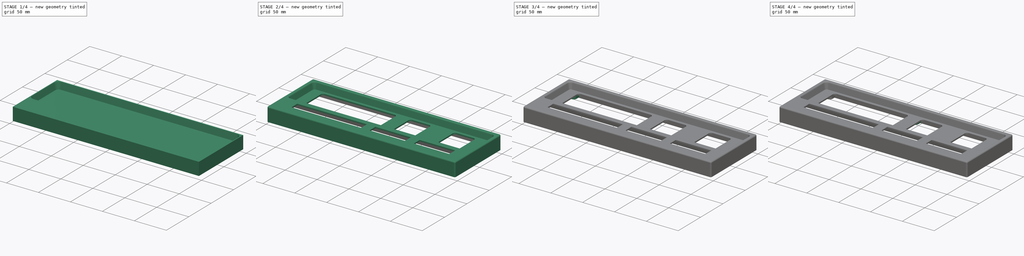
[diagram: build sequence overview — one tinted view per stage of 4, left to right]
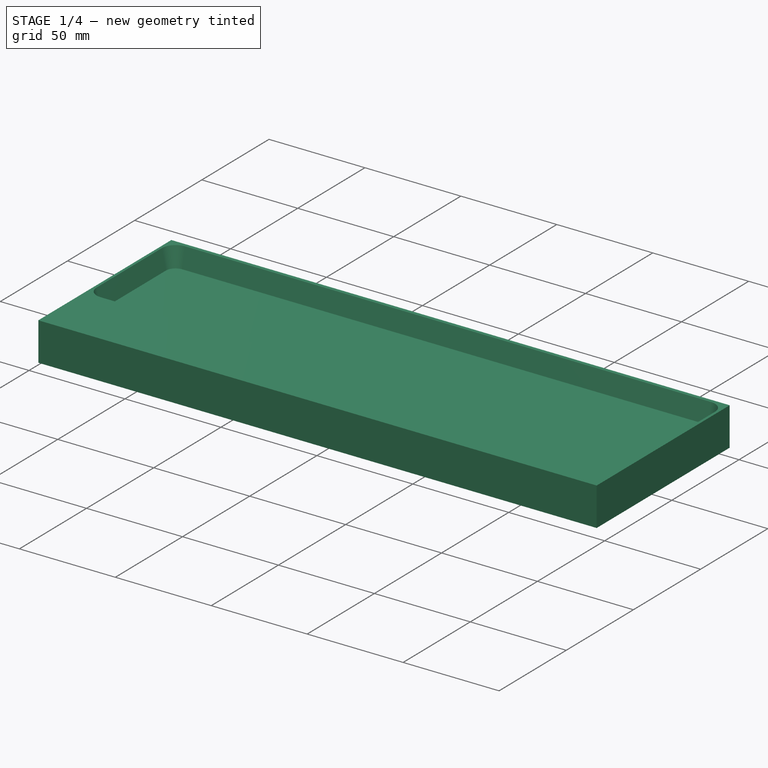
[diagram: stage 1 of 4 — iso view after this stage's code; geometry added in this stage tinted green]
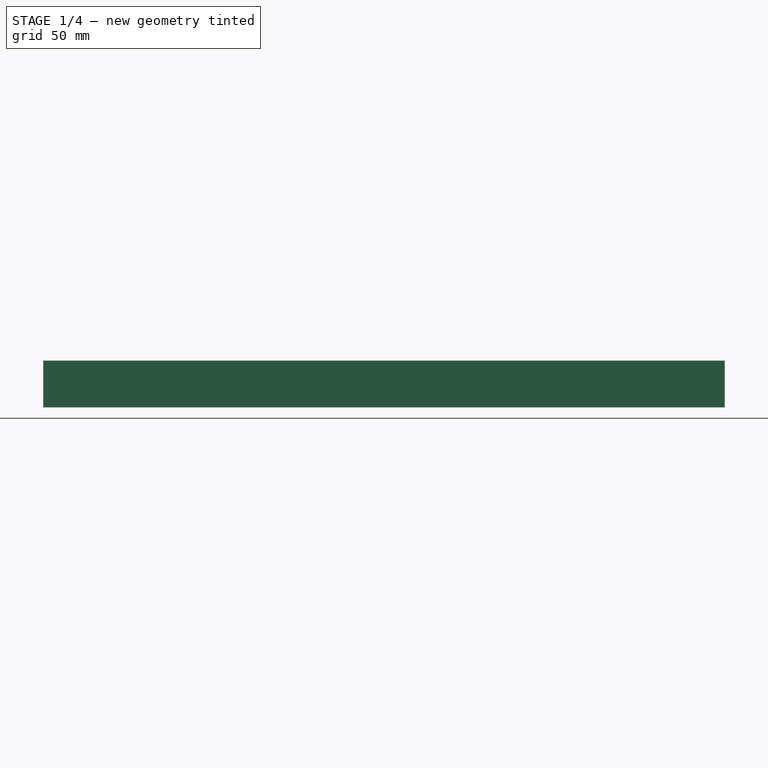
[diagram: stage 1 of 4 — front view after this stage's code; geometry added in this stage tinted green]
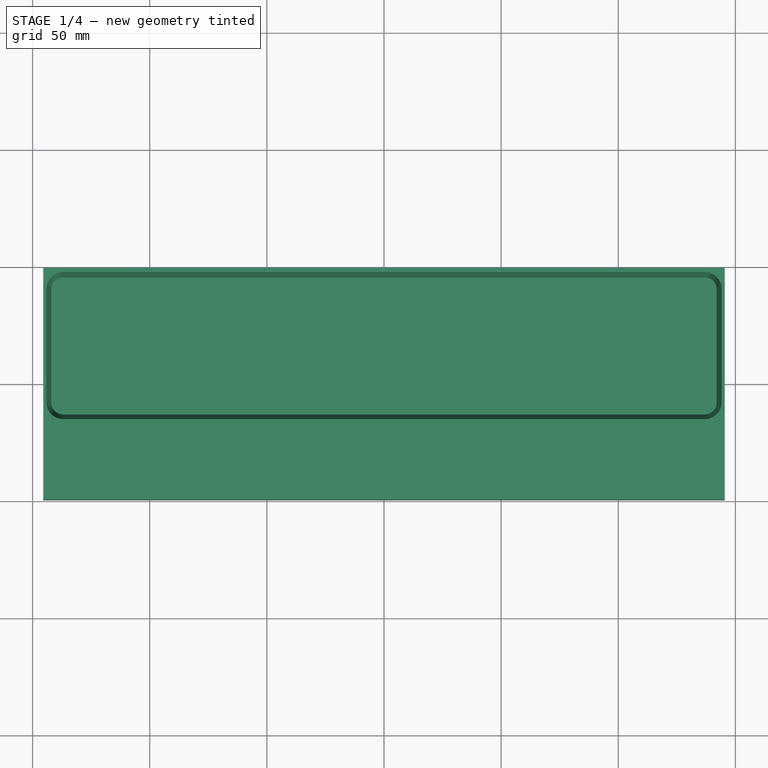
[diagram: stage 1 of 4 — top view after this stage's code; geometry added in this stage tinted green]
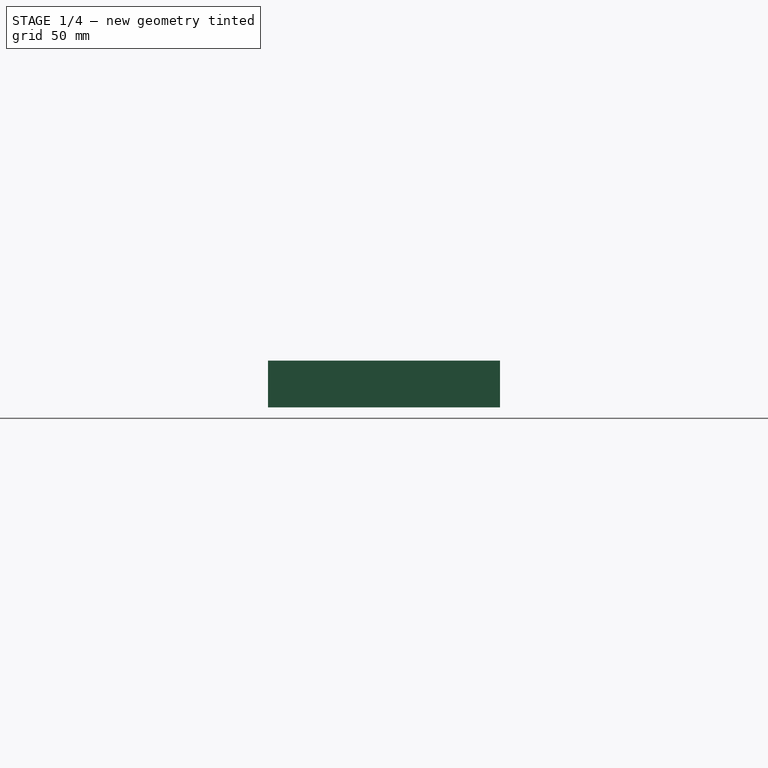
[diagram: stage 1 of 4 — right view after this stage's code; geometry added in this stage tinted green]
FCSTD DOCUMENT  (FreeCAD 0.21R33771 (Git))
Label: front panel
License: All rights reserved
LicenseURL: http://en.wikipedia.org/wiki/All_rights_reserved
objects: Sketcher::SketchObject×6, PartDesign::LinearPattern×4, PartDesign::Pad×3, PartDesign::Pocket×3, PartDesign::Draft×1, PartDesign::Thickness×1, PartDesign::MultiTransform×1, PartDesign::Body×1
note: 28 computed .brp shape members not serialized (recipe doc carries the construction recipe); baked Part::Feature solids carry a one-line shape summary decoded from their .brp

FEATURE [Sketcher::SketchObject] Sketch
  FullyConstrained = true
  MapMode = 5
  Support = -> [XY_Plane]
  sketch-geometry (4):
    g0: LineSegment StartX=-145.5 StartY=49.5 StartZ=0 EndX=145.5 EndY=49.5 EndZ=0
    g1: LineSegment StartX=145.5 StartY=49.5 StartZ=0 EndX=145.5 EndY=-49.5 EndZ=0
    g2: LineSegment StartX=145.5 StartY=-49.5 StartZ=0 EndX=-145.5 EndY=-49.5 EndZ=0
    g3: LineSegment StartX=-145.5 StartY=-49.5 StartZ=0 EndX=-145.5 EndY=49.5 EndZ=0
  constraints (11):
    c: Coincident(g0,g1)
    c: Coincident(g1,g2)
    c: Coincident(g2,g3)
    c: Coincident(g3,g0)
    c: Horizontal(g0)
    c: Horizontal(g2)
    c: Vertical(g1)
    c: Vertical(g3)
    c: Symmetric(g1,g0,g-1)
    c: DistanceY(g3,g3) = 99
    c: DistanceX(g0,g0) = 291
FEATURE [PartDesign::Pad] Pad
  Direction = (0,0,1)
  Length = 20
  Length2 = 10
  Profile = -> Sketch
  ReferenceAxis = -> Sketch [N_Axis]
  Type = 0
FEATURE [Sketcher::SketchObject] Sketch001
  FullyConstrained = true
  MapMode = 5
  Placement = pos=(0,0,20) rot=(0,0,1;0rad)
  Support = -> [Pad]
  sketch-geometry (10):
    g0: ArcOfCircle CenterX=-137 CenterY=40.5 CenterZ=0 NormalX=0 NormalY=0 NormalZ=1 AngleXU=0 Radius=5 StartAngle=1.5708 EndAngle=3.14159
    g1: LineSegment StartX=-137 StartY=45.5 StartZ=0 EndX=137 EndY=45.5 EndZ=0
    g2: ArcOfCircle CenterX=137 CenterY=40.5 CenterZ=0 NormalX=0 NormalY=0 NormalZ=1 AngleXU=0 Radius=5 StartAngle=5e-16 EndAngle=1.5708
    g3: LineSegment StartX=142 StartY=40.5 StartZ=0 EndX=142 EndY=-8 EndZ=0
    g4: ArcOfCircle CenterX=137 CenterY=-8 CenterZ=0 NormalX=0 NormalY=0 NormalZ=1 AngleXU=0 Radius=5 StartAngle=4.71239 EndAngle=6.28319
    g5: LineSegment StartX=137 StartY=-13 StartZ=0 EndX=-137 EndY=-13 EndZ=0
    g6: ArcOfCircle CenterX=-137 CenterY=-8 CenterZ=0 NormalX=0 NormalY=0 NormalZ=1 AngleXU=0 Radius=5 StartAngle=3.14159 EndAngle=4.71239
    g7: LineSegment StartX=-142 StartY=-8 StartZ=0 EndX=-142 EndY=40.5 EndZ=0
    g8: GeomPoint X=-142 Y=45.5 Z=0
    g9: GeomPoint X=142 Y=-13 Z=0
  constraints (23):
    c: Tangent(g0,g1) = 1.5708
    c: Tangent(g1,g2) = 1.5708
    c: Tangent(g2,g3) = 1.5708
    c: Tangent(g3,g4) = 1.5708
    c: Tangent(g4,g5) = 1.5708
    c: Tangent(g5,g6) = 1.5708
    c: Tangent(g6,g7) = 1.5708
    c: Tangent(g7,g0) = 1.5708
    c: Horizontal(g1)
    c: Horizontal(g5)
    c: Vertical(g3)
    c: Vertical(g7)
    c: Equal(g2,g4)
    c: Equal(g4,g6)
    c: PointOnObject(g8,g1)
    c: PointOnObject(g8,g7)
    c: PointOnObject(g9,g3)
    c: PointOnObject(g9,g5)
    c: Diameter(g2) = 10
    c: DistanceX(g0,g2) = 284
    c: Symmetric(g0,g2,g-2)
    c: DistanceY(g-1,g0) = 45.5
    c: DistanceY(g5,g-1) = 13
FEATURE [PartDesign::Pocket] Pocket
  BaseFeature = -> Pad
  Direction = (0,0,-1)
  Length = 10
  Length2 = 5
  Profile = -> Sketch001
  ReferenceAxis = -> Sketch001 [N_Axis]
  Type = 0
FEATURE [PartDesign::Draft] Draft
  Angle = 12
  Base = -> Pocket [Face10]
  BaseFeature = -> Pocket
  NeutralPlane = -> Pocket [Face15]
  SupportTransform = false
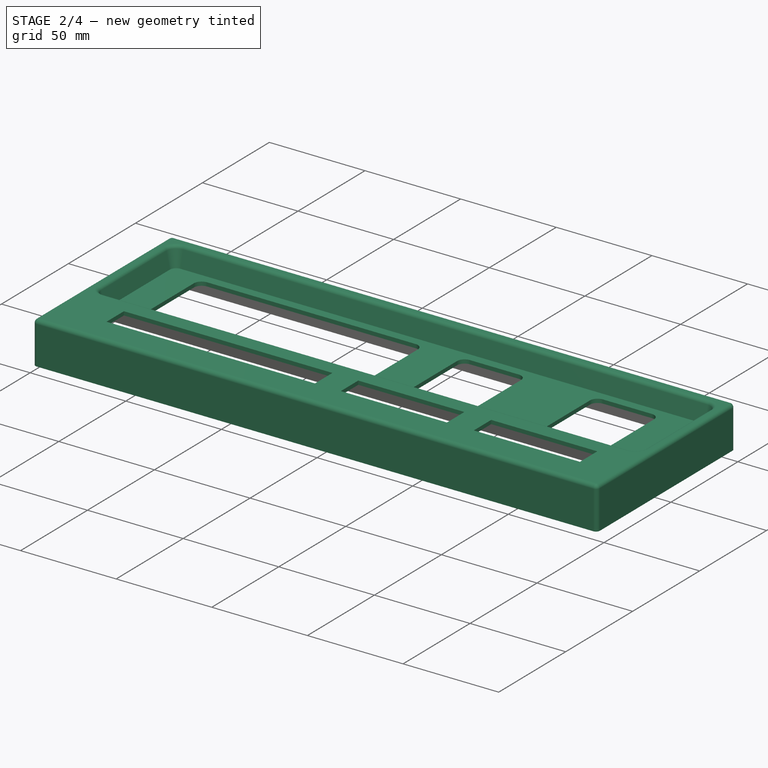
[diagram: stage 2 of 4 — iso view after this stage's code; geometry added in this stage tinted green]
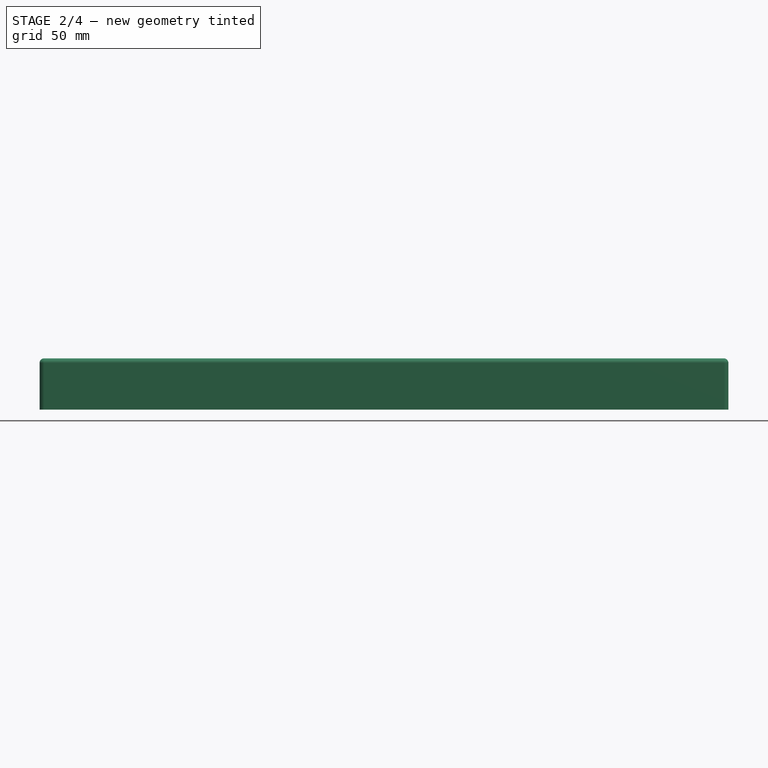
[diagram: stage 2 of 4 — front view after this stage's code; geometry added in this stage tinted green]
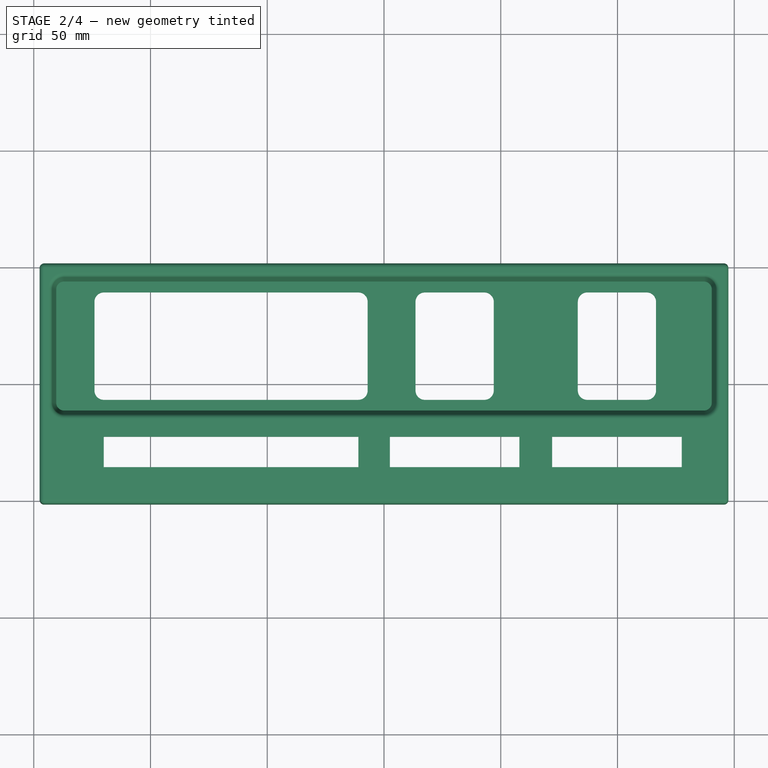
[diagram: stage 2 of 4 — top view after this stage's code; geometry added in this stage tinted green]
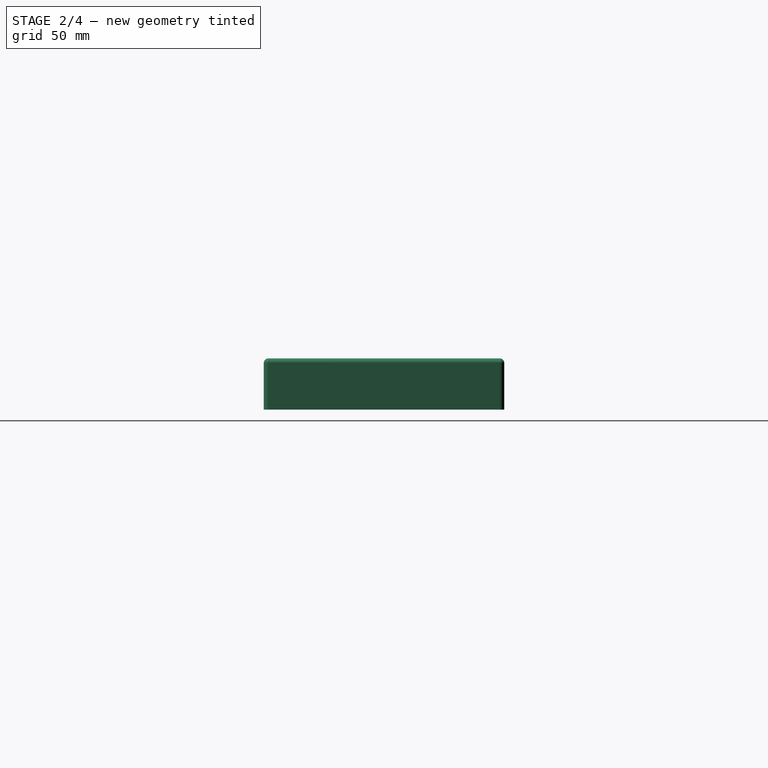
[diagram: stage 2 of 4 — right view after this stage's code; geometry added in this stage tinted green]
FEATURE [PartDesign::Thickness] Thickness
  Base = -> Draft [Face4]
  BaseFeature = -> Draft
  Intersection = false
  Join = 0
  Mode = 0
  SupportTransform = false
  Value = 2
FEATURE [Sketcher::SketchObject] Sketch002
  FullyConstrained = true
  MapMode = 5
  Placement = pos=(0,0,22) rot=(0,0,1;0rad)
  Support = -> [Thickness]
  sketch-geometry (42):
    g0: LineSegment StartX=-120 StartY=-22.8 StartZ=0 EndX=-11 EndY=-22.8 EndZ=0
    g1: LineSegment StartX=-11 StartY=-22.8 StartZ=0 EndX=-11 EndY=-35.8 EndZ=0
    g2: LineSegment StartX=-11 StartY=-35.8 StartZ=0 EndX=-120 EndY=-35.8 EndZ=0
    g3: LineSegment StartX=-120 StartY=-35.8 StartZ=0 EndX=-120 EndY=-22.8 EndZ=0
    g4: LineSegment StartX=2.5 StartY=-22.8 StartZ=0 EndX=58 EndY=-22.8 EndZ=0
    g5: LineSegment StartX=58 StartY=-22.8 StartZ=0 EndX=58 EndY=-35.8 EndZ=0
    g6: LineSegment StartX=58 StartY=-35.8 StartZ=0 EndX=2.5 EndY=-35.8 EndZ=0
    g7: LineSegment StartX=2.5 StartY=-35.8 StartZ=0 EndX=2.5 EndY=-22.8 EndZ=0
    g8: LineSegment StartX=72 StartY=-22.8 StartZ=0 EndX=127.5 EndY=-22.8 EndZ=0
    g9: LineSegment StartX=127.5 StartY=-22.8 StartZ=0 EndX=127.5 EndY=-35.8 EndZ=0
    g10: LineSegment StartX=127.5 StartY=-35.8 StartZ=0 EndX=72 EndY=-35.8 EndZ=0
    g11: LineSegment StartX=72 StartY=-35.8 StartZ=0 EndX=72 EndY=-22.8 EndZ=0
    g12: ArcOfCircle CenterX=-120 CenterY=35.2 CenterZ=0 NormalX=0 NormalY=0 NormalZ=1 AngleXU=0 Radius=4 StartAngle=1.5708 EndAngle=3.14159
    g13: LineSegment StartX=-120 StartY=39.2 StartZ=0 EndX=-11 EndY=39.2 EndZ=0
    g14: ArcOfCircle CenterX=-11 CenterY=35.2 CenterZ=0 NormalX=0 NormalY=0 NormalZ=1 AngleXU=0 Radius=4 StartAngle=1e-16 EndAngle=1.5708
    g15: LineSegment StartX=-7 StartY=35.2 StartZ=0 EndX=-7 EndY=-2.8 EndZ=0
    g16: ArcOfCircle CenterX=-11 CenterY=-2.8 CenterZ=0 NormalX=0 NormalY=0 NormalZ=1 AngleXU=0 Radius=4 StartAngle=4.71239 EndAngle=6.28319
    g17: LineSegment StartX=-11 StartY=-6.8 StartZ=0 EndX=-120 EndY=-6.8 EndZ=0
    g18: ArcOfCircle CenterX=-120 CenterY=-2.8 CenterZ=0 NormalX=0 NormalY=0 NormalZ=1 AngleXU=0 Radius=4 StartAngle=3.14159 EndAngle=4.71239
    g19: LineSegment StartX=-124 StartY=-2.8 StartZ=0 EndX=-124 EndY=35.2 EndZ=0
    g20: GeomPoint X=-124 Y=39.2 Z=0
    g21: GeomPoint X=-7 Y=-6.8 Z=0
    g22: ArcOfCircle CenterX=17.5 CenterY=35.2 CenterZ=0 NormalX=0 NormalY=0 NormalZ=1 AngleXU=0 Radius=4 StartAngle=1.5708 EndAngle=3.14159
    g23: LineSegment StartX=17.5 StartY=39.2 StartZ=0 EndX=43 EndY=39.2 EndZ=0
    g24: ArcOfCircle CenterX=43 CenterY=35.2 CenterZ=0 NormalX=0 NormalY=0 NormalZ=1 AngleXU=0 Radius=4 StartAngle=0 EndAngle=1.5708
    g25: LineSegment StartX=47 StartY=35.2 StartZ=0 EndX=47 EndY=-2.8 EndZ=0
    g26: ArcOfCircle CenterX=43 CenterY=-2.8 CenterZ=0 NormalX=0 NormalY=0 NormalZ=1 AngleXU=0 Radius=4 StartAngle=4.71239 EndAngle=6.28319
    g27: LineSegment StartX=43 StartY=-6.8 StartZ=0 EndX=17.5 EndY=-6.8 EndZ=0
    g28: ArcOfCircle CenterX=17.5 CenterY=-2.8 CenterZ=0 NormalX=0 NormalY=0 NormalZ=1 AngleXU=0 Radius=4 StartAngle=3.14159 EndAngle=4.71239
    g29: LineSegment StartX=13.5 StartY=-2.8 StartZ=0 EndX=13.5 EndY=35.2 EndZ=0
    g30: GeomPoint X=13.5 Y=39.2 Z=0
    g31: GeomPoint X=47 Y=-6.8 Z=0
    g32: ArcOfCircle CenterX=87 CenterY=35.2 CenterZ=0 NormalX=0 NormalY=0 NormalZ=1 AngleXU=0 Radius=4 StartAngle=1.5708 EndAngle=3.14159
    g33: LineSegment StartX=87 StartY=39.2 StartZ=0 EndX=112.5 EndY=39.2 EndZ=0
    g34: ArcOfCircle CenterX=112.5 CenterY=35.2 CenterZ=0 NormalX=0 NormalY=0 NormalZ=1 AngleXU=0 Radius=4 StartAngle=1e-16 EndAngle=1.5708
    g35: LineSegment StartX=116.5 StartY=35.2 StartZ=0 EndX=116.5 EndY=-2.8 EndZ=0
    g36: ArcOfCircle CenterX=112.5 CenterY=-2.8 CenterZ=0 NormalX=0 NormalY=0 NormalZ=1 AngleXU=0 Radius=4 StartAngle=4.71239 EndAngle=6.28319
    g37: LineSegment StartX=112.5 StartY=-6.8 StartZ=0 EndX=87 EndY=-6.8 EndZ=0
    g38: ArcOfCircle CenterX=87 CenterY=-2.8 CenterZ=0 NormalX=0 NormalY=0 NormalZ=1 AngleXU=0 Radius=4 StartAngle=3.14159 EndAngle=4.71239
    g39: LineSegment StartX=83 StartY=-2.8 StartZ=0 EndX=83 EndY=35.2 EndZ=0
    g40: GeomPoint X=83 Y=39.2 Z=0
    g41: GeomPoint X=116.5 Y=-6.8 Z=0
  constraints (108):
    c: Coincident(g0,g1)
    c: Coincident(g1,g2)
    c: Coincident(g2,g3)
    c: Coincident(g3,g0)
    c: Horizontal(g0)
    c: Horizontal(g2)
    c: Vertical(g1)
    c: Vertical(g3)
    c: Coincident(g4,g5)
    c: Coincident(g5,g6)
    c: Coincident(g6,g7)
    c: Coincident(g7,g4)
    c: Horizontal(g4)
    c: Horizontal(g6)
    c: Vertical(g5)
    c: Vertical(g7)
    c: Coincident(g8,g9)
    c: Coincident(g9,g10)
    c: Coincident(g10,g11)
    c: Coincident(g11,g8)
    c: Horizontal(g8)
    c: Horizontal(g10)
    c: Vertical(g9)
    c: Vertical(g11)
    c: Horizontal(g10,g5)
    c: Horizontal(g5,g1)
    c: Horizontal(g4,g0)
    c: Horizontal(g0,g8)
    c: DistanceY(g3,g3) = 13
    c: DistanceX(g2,g-1) = 120
    c: DistanceX(g0,g0) = 109
    c: DistanceY(g1,g-1) = 35.8
    c: DistanceX(g0,g4) = 13.5
    c: DistanceX(g4,g4) = 55.5
    c: DistanceX(g4,g8) = 14
    c: Equal(g8,g4)
    c: Tangent(g12,g13) = 1.5708
    c: Tangent(g13,g14) = 1.5708
    c: Tangent(g14,g15) = 1.5708
    c: Tangent(g15,g16) = 1.5708
    c: Tangent(g16,g17) = 1.5708
    c: Tangent(g17,g18) = 1.5708
    c: Tangent(g18,g19) = 1.5708
    c: Tangent(g19,g12) = 1.5708
    c: Horizontal(g13)
    c: Horizontal(g17)
    c: Vertical(g15)
    c: Vertical(g19)
    c: Equal(g12,g14)
    c: Equal(g14,g16)
    c: Equal(g16,g18)
    c: PointOnObject(g20,g13)
    c: PointOnObject(g20,g19)
    c: PointOnObject(g21,g15)
    c: PointOnObject(g21,g17)
    c: Radius(g12) = 4
    c: Vertical(g17,g0)
    c: Vertical(g16,g0)
    c: Tangent(g22,g23) = 1.5708
    c: Tangent(g23,g24) = 1.5708
    c: Tangent(g24,g25) = 1.5708
    c: Tangent(g25,g26) = 1.5708
    c: Tangent(g26,g27) = 1.5708
    c: Tangent(g27,g28) = 1.5708
    c: Tangent(g28,g29) = 1.5708
    c: Tangent(g29,g22) = 1.5708
    c: Horizontal(g23)
    c: Horizontal(g27)
    c: Vertical(g25)
    c: Vertical(g29)
    c: Equal(g22,g24)
    c: Equal(g24,g26)
    c: Equal(g26,g28)
    c: PointOnObject(g30,g23)
    c: PointOnObject(g30,g29)
    c: PointOnObject(g31,g25)
    c: PointOnObject(g31,g27)
    c: Equal(g26,g14)
    c: Horizontal(g22,g13)
    c: Horizontal(g27,g16)
    c: DistanceX(g26,g4) = 15
    c: DistanceX(g4,g27) = 15
    c: Tangent(g32,g33) = 1.5708
    c: Tangent(g33,g34) = 1.5708
    c: Tangent(g34,g35) = 1.5708
    c: Tangent(g35,g36) = 1.5708
    c: Tangent(g36,g37) = 1.5708
    c: Tangent(g37,g38) = 1.5708
    c: Tangent(g38,g39) = 1.5708
    c: Tangent(g39,g32) = 1.5708
    c: Horizontal(g33)
    c: Horizontal(g37)
    c: Vertical(g35)
    c: Vertical(g39)
    c: Equal(g32,g34)
    c: Equal(g34,g36)
    c: Equal(g36,g38)
    c: PointOnObject(g40,g33)
    c: PointOnObject(g40,g39)
    c: PointOnObject(g41,g35)
    c: PointOnObject(g41,g37)
    c: Horizontal(g23,g32)
    c: Equal(g32,g24)
    c: DistanceX(g36,g8) = 15
    c: Equal(g27,g37)
    c: DistanceY(g8,g35) = 20
    c: DistanceY(g8,g33) = 62
    c: Horizontal(g37,g16)
FEATURE [PartDesign::Pocket] Pocket001
  BaseFeature = -> Thickness
  Direction = (0,0,-1)
  Length = 5
  Length2 = 5
  Profile = -> Sketch002
  ReferenceAxis = -> Sketch002 [N_Axis]
  Type = 1
FEATURE [Sketcher::SketchObject] Sketch003
  FullyConstrained = true
  MapMode = 5
  Placement = pos=(0,0,20) rot=(1,0,0;3.14159rad)
  Support = -> [Pocket001]
  sketch-geometry (1):
    g0: Circle CenterX=-134.5 CenterY=43.5 CenterZ=0 NormalX=0 NormalY=0 NormalZ=1 AngleXU=0 Radius=4.5
  constraints (3):
    c: DistanceY(g-1,g0) = 43.5
    c: DistanceX(g0,g-1) = 134.5
    c: Diameter(g0) = 9
FEATURE [PartDesign::Pad] Pad001
  BaseFeature = -> Pocket001
  Direction = (0,0,-1)
  Length = 19
  Length2 = 10
  Profile = -> Sketch003
  ReferenceAxis = -> Sketch003 [N_Axis]
  Type = 0
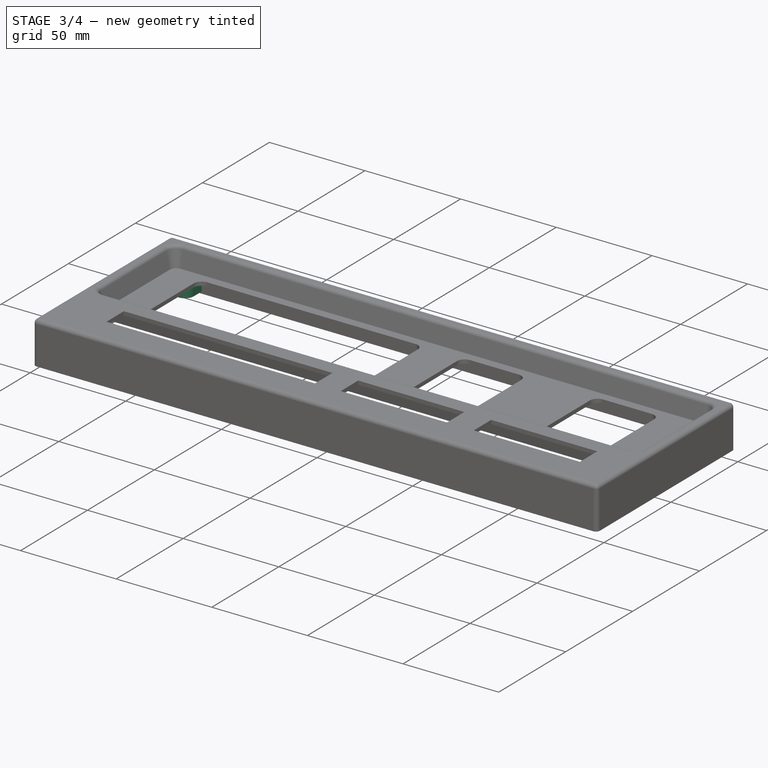
[diagram: stage 3 of 4 — iso view after this stage's code; geometry added in this stage tinted green]
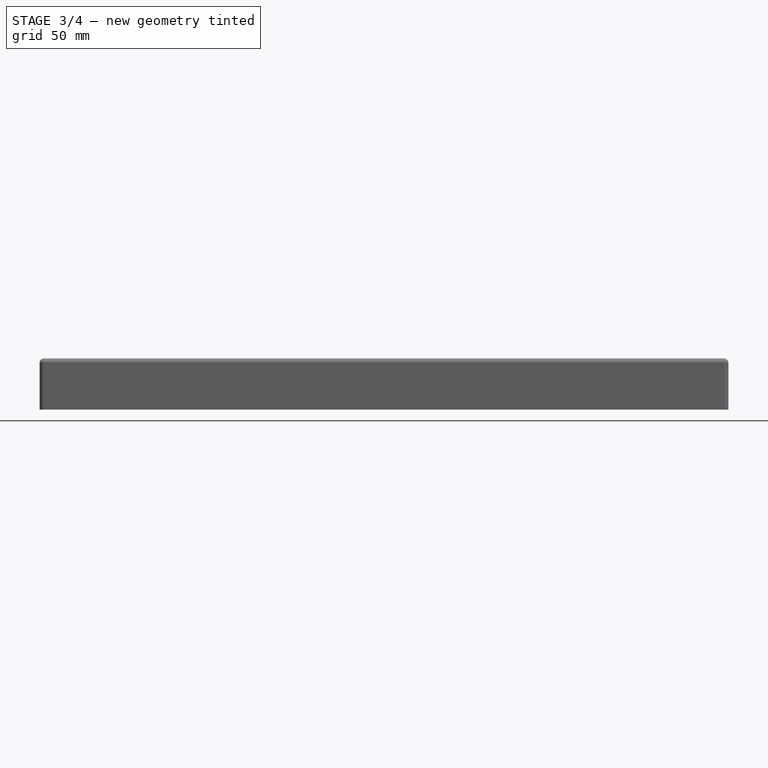
[diagram: stage 3 of 4 — front view after this stage's code; geometry added in this stage tinted green]
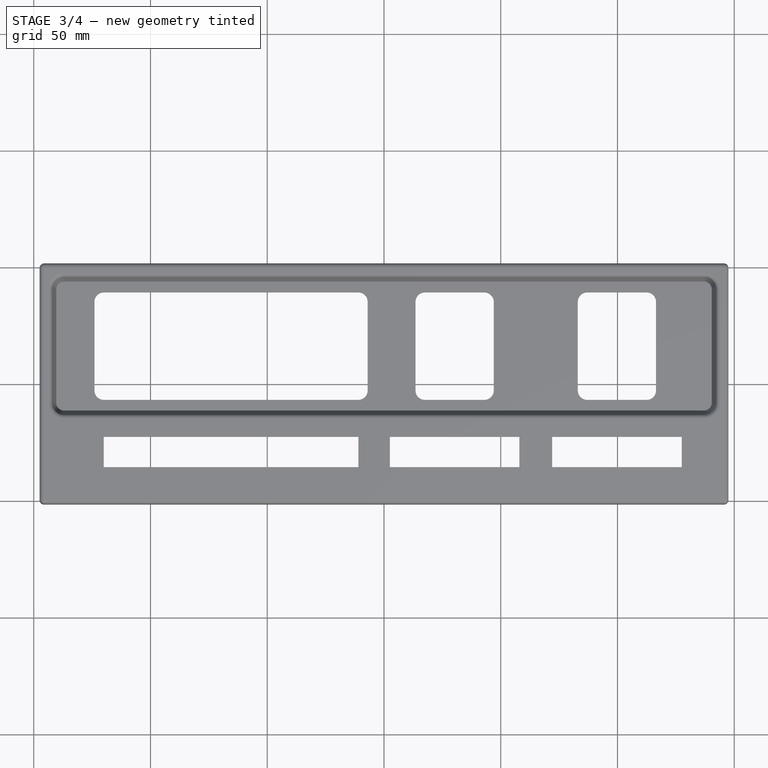
[diagram: stage 3 of 4 — top view after this stage's code; geometry added in this stage tinted green]
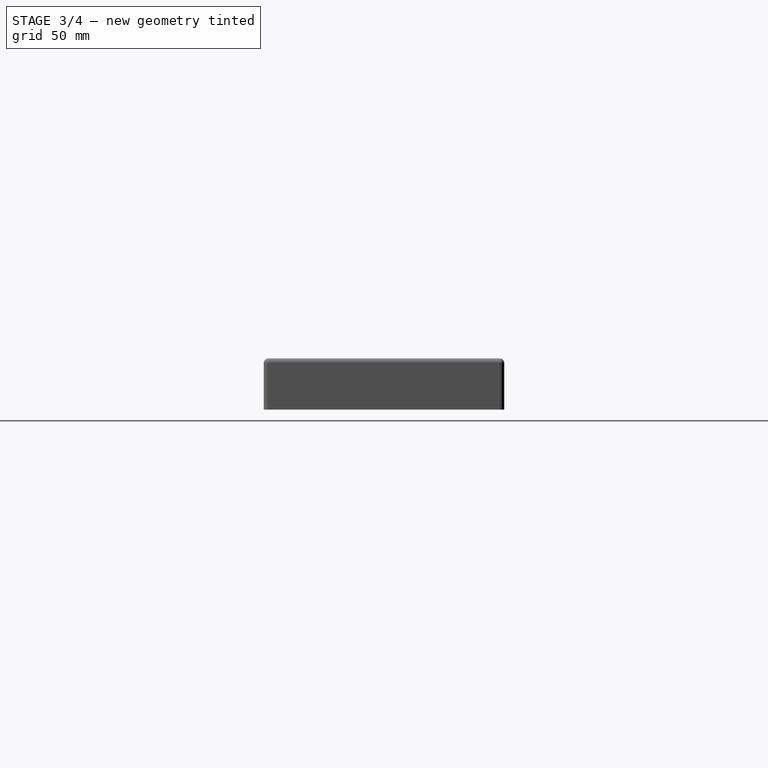
[diagram: stage 3 of 4 — right view after this stage's code; geometry added in this stage tinted green]
FEATURE [PartDesign::LinearPattern] LinearPattern
  BaseFeature = -> Pad001
  Direction = -> Sketch003 [H_Axis]
  Length = 269
  Occurrences = 3
  Originals = -> [Pad001]
FEATURE [Sketcher::SketchObject] Sketch004
  ExternalGeometry = -> [LinearPattern]
  FullyConstrained = true
  MapMode = 5
  Placement = pos=(0,0,10) rot=(1,0,0;3.14159rad)
  Support = -> [LinearPattern]
  sketch-geometry (4):
    g0: ArcOfCircle CenterX=-134.5 CenterY=-43.5 CenterZ=0 NormalX=0 NormalY=0 NormalZ=1 AngleXU=0 Radius=4.5 StartAngle=-9e-16 EndAngle=3.14159
    g1: LineSegment StartX=-139 StartY=-43.5 StartZ=0 EndX=-139 EndY=-49.5 EndZ=0
    g2: LineSegment StartX=-139 StartY=-49.5 StartZ=0 EndX=-130 EndY=-49.5 EndZ=0
    g3: LineSegment StartX=-130 StartY=-49.5 StartZ=0 EndX=-130 EndY=-43.5 EndZ=0
  constraints (11):
    c: Tangent(g0,g1) = -1.5708
    c: Coincident(g1,g2)
    c: PointOnObject(g2,g-3)
    c: Horizontal(g2)
    c: Coincident(g2,g3)
    c: Vertical(g3)
    c: Vertical(g1)
    c: Diameter(g0) = 9
    c: DistanceX(g0,g-1) = 134.5
    c: DistanceY(g0,g-1) = 43.5
    c: Tangent(g3,g0) = -1.5708
FEATURE [PartDesign::Pad] Pad002
  BaseFeature = -> LinearPattern
  Direction = (0,0,-1)
  Length = 9
  Length2 = 10
  Profile = -> Sketch004
  ReferenceAxis = -> Sketch004 [N_Axis]
  Type = 0
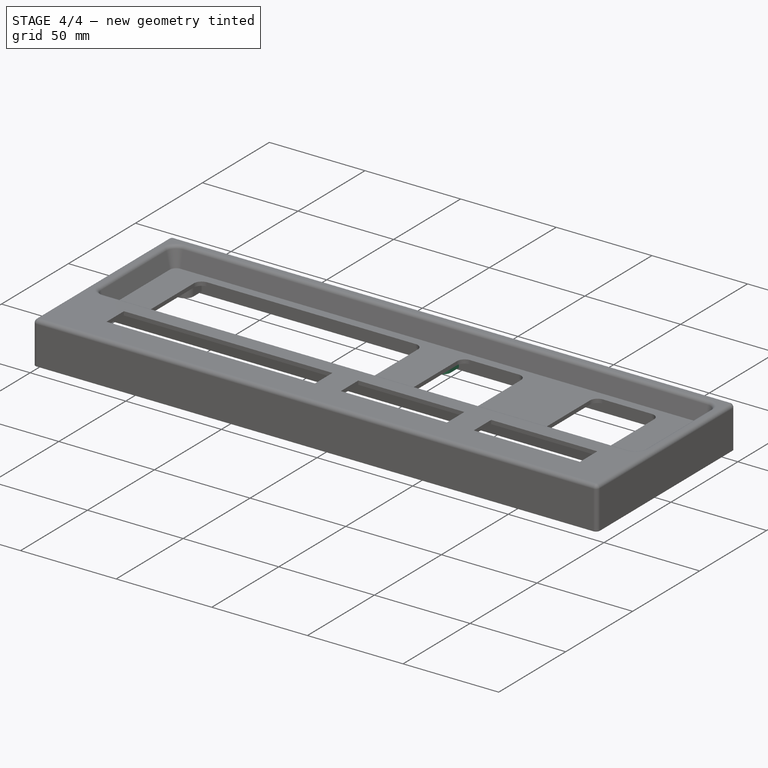
[diagram: stage 4 of 4 — iso view after this stage's code; geometry added in this stage tinted green]
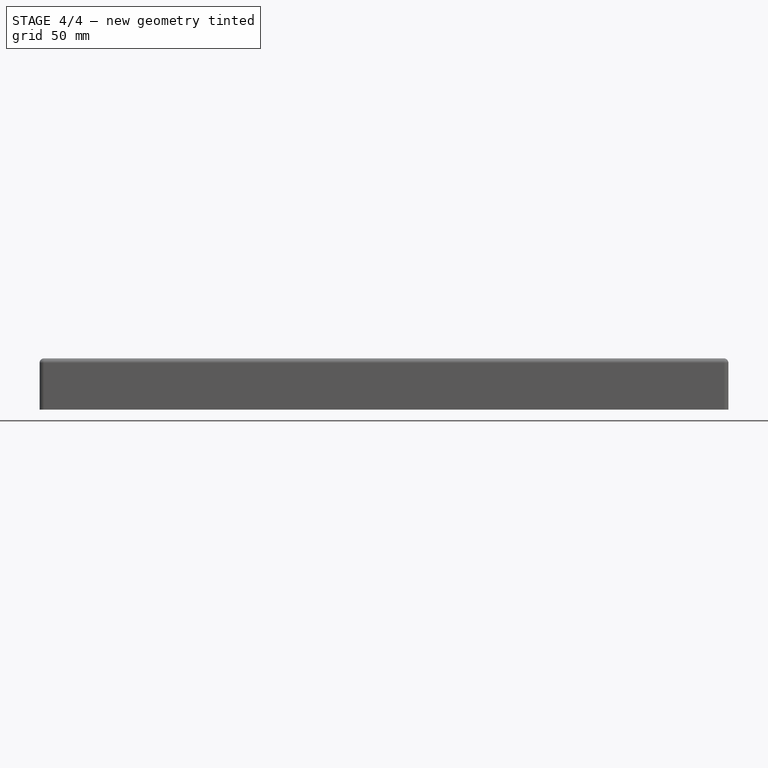
[diagram: stage 4 of 4 — front view after this stage's code; geometry added in this stage tinted green]
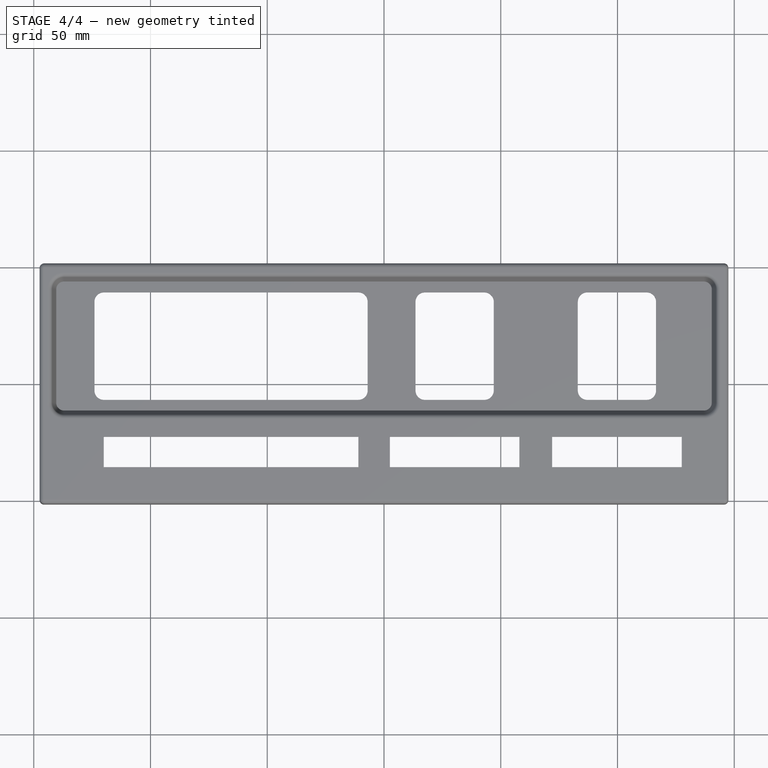
[diagram: stage 4 of 4 — top view after this stage's code; geometry added in this stage tinted green]
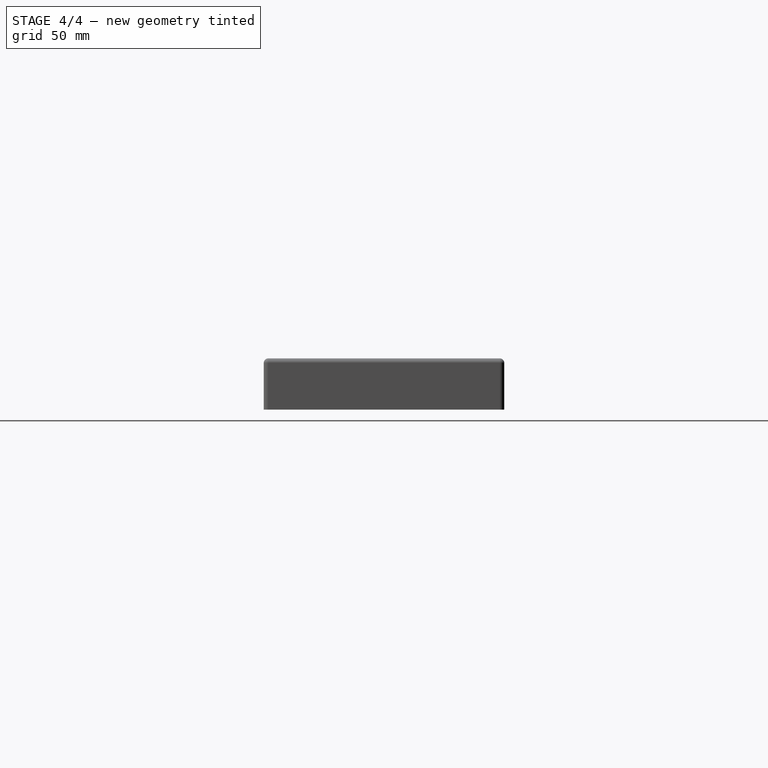
[diagram: stage 4 of 4 — right view after this stage's code; geometry added in this stage tinted green]
FEATURE [PartDesign::LinearPattern] LinearPattern001
  BaseFeature = -> Pad002
  Direction = -> Sketch004 [H_Axis]
  Length = 269
  Occurrences = 3
  Originals = -> [Pad002]
FEATURE [Sketcher::SketchObject] Sketch005
  ExternalGeometry = -> [LinearPattern001]
  FullyConstrained = true
  MapMode = 5
  Placement = pos=(0,0,1) rot=(1,0,0;3.14159rad)
  Support = -> [LinearPattern001]
  sketch-geometry (1):
    g0: Circle CenterX=-134.5 CenterY=43.5 CenterZ=0 NormalX=0 NormalY=0 NormalZ=1 AngleXU=0 Radius=2.1
  constraints (2):
    c: Coincident(g0,g-3)
    c: Diameter(g0) = 4.2
FEATURE [PartDesign::Pocket] Pocket002
  BaseFeature = -> LinearPattern001
  Direction = (0,0,1)
  Length = 10
  Length2 = 5
  Profile = -> Sketch005
  ReferenceAxis = -> Sketch005 [N_Axis]
  Type = 0
FEATURE [PartDesign::LinearPattern] LinearPattern002
  Direction = -> Sketch005 [H_Axis]
  Length = 269
  Occurrences = 3
FEATURE [PartDesign::LinearPattern] LinearPattern003
  Direction = -> Sketch005 [V_Axis]
  Length = 87
  Occurrences = 2
  Reversed = true
FEATURE [PartDesign::MultiTransform] MultiTransform
  BaseFeature = -> Pocket002
  Originals = -> [Pocket002]
  Transformations = -> [LinearPattern002,LinearPattern003]
FEATURE [PartDesign::Body] Body
  Group = -> [Sketch,Pad,Sketch001,Pocket,Draft,Thickness,Sketch002,Pocket001,Sketch003,Pad001,LinearPattern,Sketch004,Pad002,LinearPattern001,Sketch005,Pocket002,MultiTransform,LinearPattern002,LinearPattern003]
  Origin = -> Origin
  Tip = -> MultiTransform
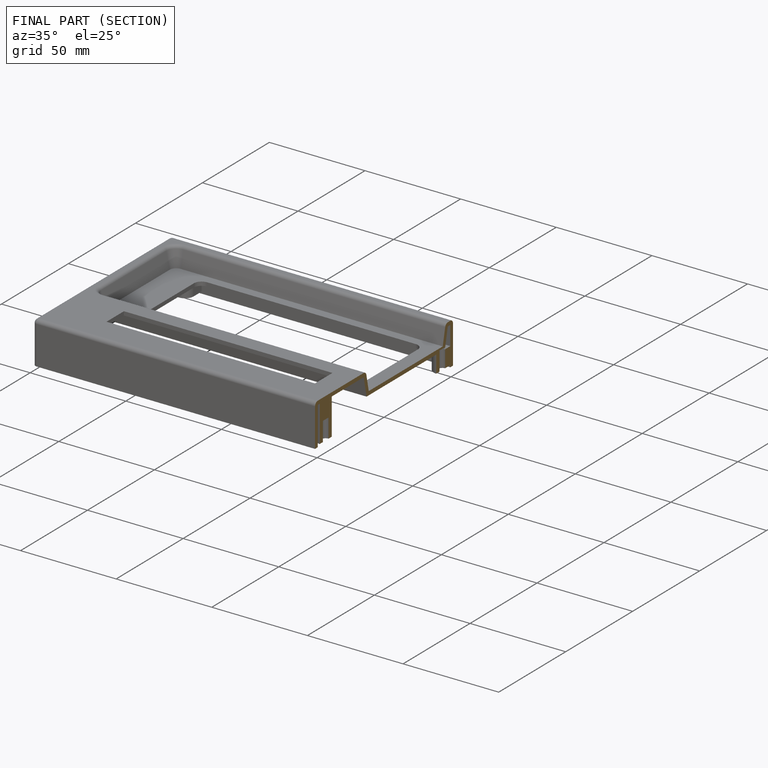
[diagram: finished part — half-section view (interior)]
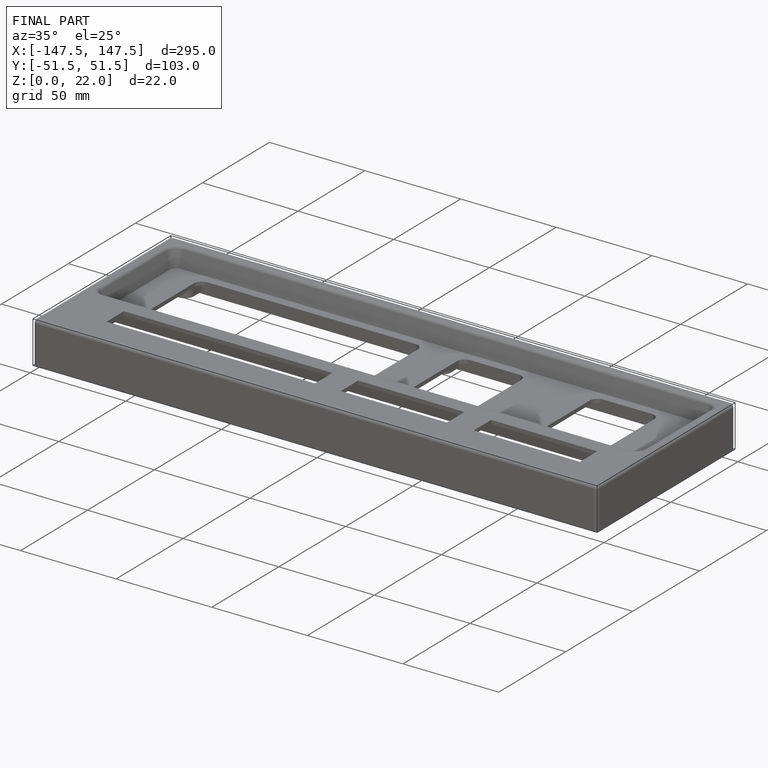
[diagram: finished part — iso view with bounding-box wireframe]
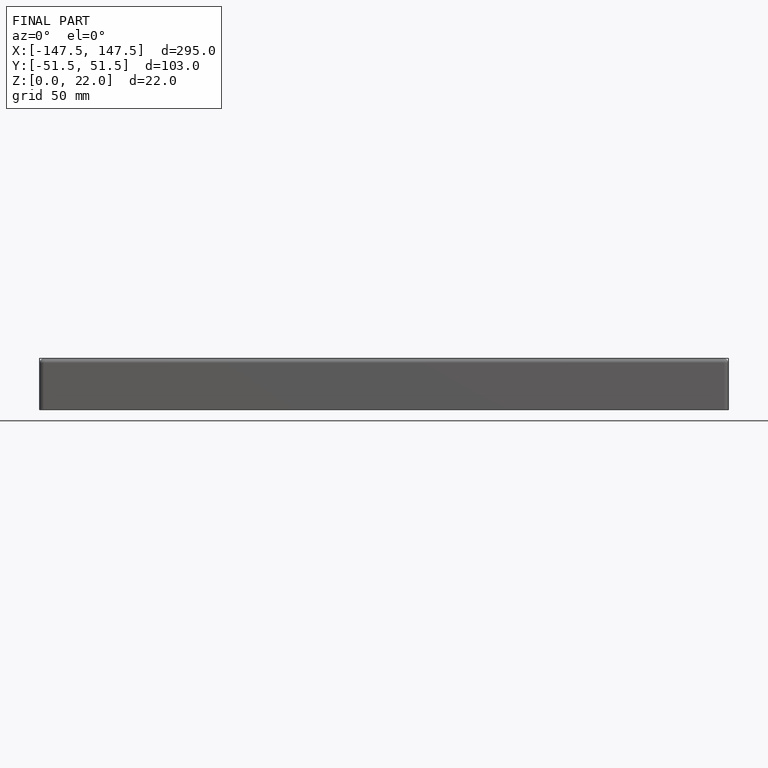
[diagram: finished part — front view with bounding-box wireframe]
